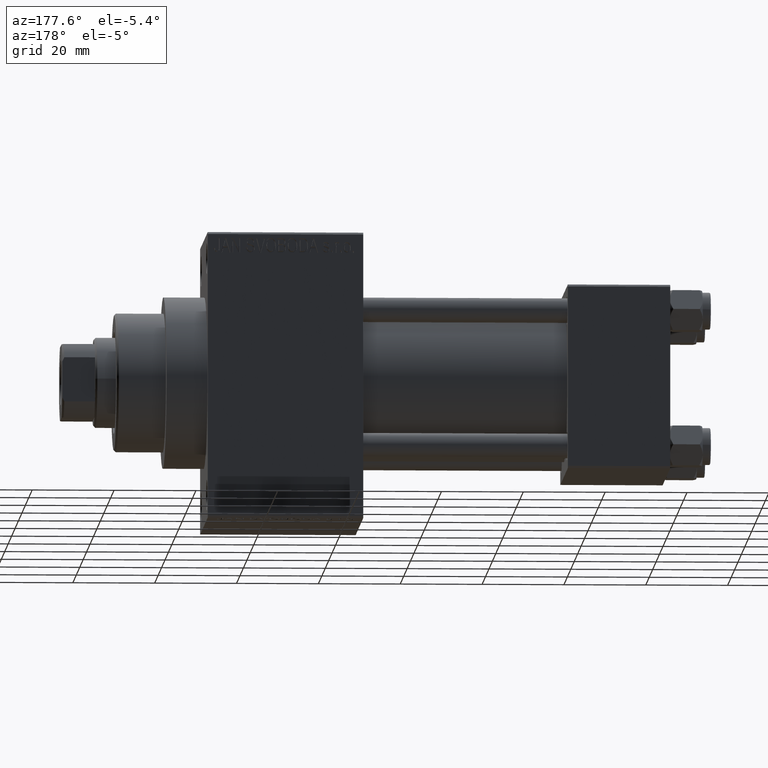
[diagram: clean part render]
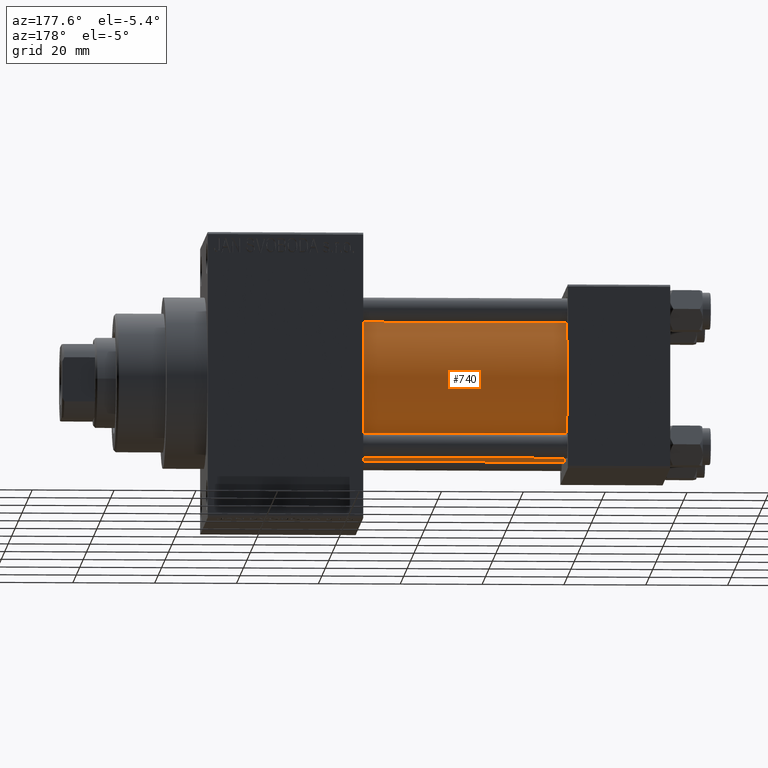
[diagram: same view with one face highlighted and labeled with its STEP entity id]
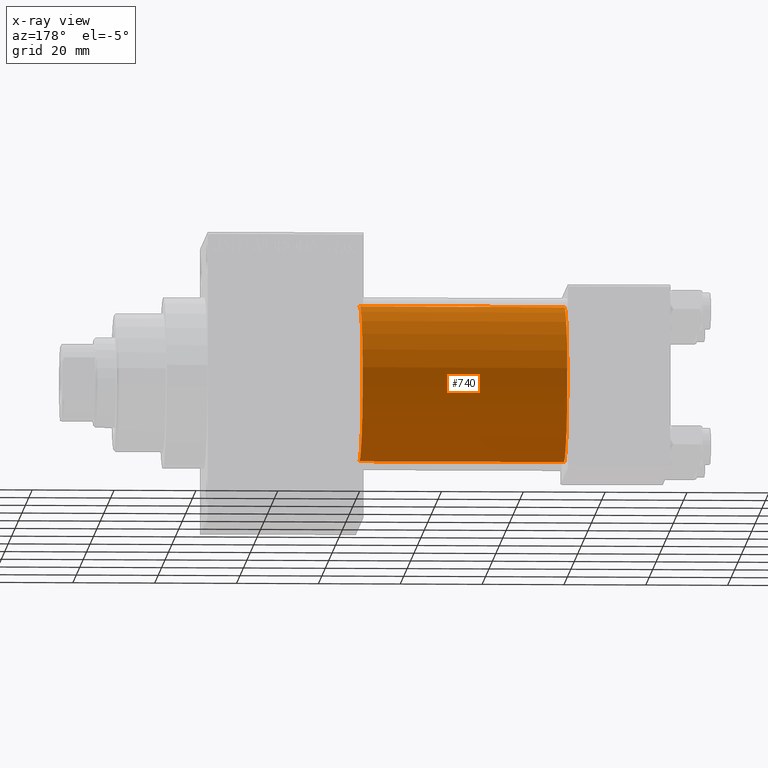
[diagram: x-ray of the same camera — body ghosted, the highlighted face saturated]
A machine part, auxiliary view. The second image highlights one B-rep face of the part: STEP entity #740.
The next image is the same camera in x-ray: the body ghosted, the highlighted face saturated — about 0% of this face is hidden behind the body in this view.
In plain terms, the highlighted cylindrical surface (partial cylindrical patch) has radius 19 mm, axis along (-1, -0, -0).
Its self-contained STEP definition (entity closure, byte-faithful):
#363 = CIRCLE ( 'NONE', #39194, 19.00000000000000000 ) ;
#740 = ADVANCED_FACE ( 'NONE', ( #43077 ), #10881, .T. ) ;
#3723 = EDGE_CURVE ( 'NONE', #46496, #33943, #3788, .T. ) ;
#3788 = LINE ( 'NONE', #46921, #24869 ) ;
#8344 = VECTOR ( 'NONE', #39239, 1000.000000000000000 ) ;
#9217 = ORIENTED_EDGE ( 'NONE', *, *, #39480, .F. ) ;
#10654 = CARTESIAN_POINT ( 'NONE',  ( 75.00000000000001421, -2.602085213965210642E-15, 0.000000000000000000 ) ) ;
#10881 = CYLINDRICAL_SURFACE ( 'NONE', #24996, 19.00000000000000000 ) ;
#10885 = EDGE_CURVE ( 'NONE', #23610, #26611, #36116, .T. ) ;
#11115 = ORIENTED_EDGE ( 'NONE', *, *, #10885, .F. ) ;
#11292 = CARTESIAN_POINT ( 'NONE',  ( 75.00000000000001421, -2.752562955852396712E-16, -19.00000000000000000 ) ) ;
#11596 = CARTESIAN_POINT ( 'NONE',  ( 25.00000000000000000, -2.602085213965210642E-15, 19.00000000000000000 ) ) ;
#13042 = DIRECTION ( 'NONE',  ( 0.000000000000000000, 0.000000000000000000, -1.000000000000000000 ) ) ;
#15209 = CARTESIAN_POINT ( 'NONE',  ( 25.00000000000000000, -2.752562955852396712E-16, -19.00000000000000000 ) ) ;
#16388 = DIRECTION ( 'NONE',  ( 1.000000000000000000, 0.000000000000000000, 0.000000000000000000 ) ) ;
#18541 = DIRECTION ( 'NONE',  ( 0.000000000000000000, 0.000000000000000000, 1.000000000000000000 ) ) ;
#19036 = EDGE_LOOP ( 'NONE', ( #9217, #33796, #24474, #11115 ) ) ;
#23610 = VERTEX_POINT ( 'NONE', #42145 ) ;
#24474 = ORIENTED_EDGE ( 'NONE', *, *, #30135, .T. ) ;
#24869 = VECTOR ( 'NONE', #40745, 1000.000000000000000 ) ;
#24996 = AXIS2_PLACEMENT_3D ( 'NONE', #10654, #31890, #46184 ) ;
#26611 = VERTEX_POINT ( 'NONE', #11596 ) ;
#28530 = CARTESIAN_POINT ( 'NONE',  ( 75.00000000000001421, -2.602085213965210642E-15, 19.00000000000000000 ) ) ;
#30135 = EDGE_CURVE ( 'NONE', #33943, #26611, #363, .T. ) ;
#31890 = DIRECTION ( 'NONE',  ( -1.000000000000000000, -0.000000000000000000, -0.000000000000000000 ) ) ;
#33554 = DIRECTION ( 'NONE',  ( 1.000000000000000000, -0.000000000000000000, 0.000000000000000000 ) ) ;
#33796 = ORIENTED_EDGE ( 'NONE', *, *, #3723, .T. ) ;
#33943 = VERTEX_POINT ( 'NONE', #15209 ) ;
#34022 = AXIS2_PLACEMENT_3D ( 'NONE', #34734, #16388, #13042 ) ;
#34734 = CARTESIAN_POINT ( 'NONE',  ( 75.00000000000001421, -2.602085213965210642E-15, 0.000000000000000000 ) ) ;
#36116 = LINE ( 'NONE', #28530, #8344 ) ;
#39194 = AXIS2_PLACEMENT_3D ( 'NONE', #44749, #33554, #18541 ) ;
#39239 = DIRECTION ( 'NONE',  ( -1.000000000000000000, -0.000000000000000000, -0.000000000000000000 ) ) ;
#39480 = EDGE_CURVE ( 'NONE', #46496, #23610, #46196, .T. ) ;
#40745 = DIRECTION ( 'NONE',  ( -1.000000000000000000, -0.000000000000000000, -0.000000000000000000 ) ) ;
#42145 = CARTESIAN_POINT ( 'NONE',  ( 75.00000000000001421, -2.602085213965210642E-15, 19.00000000000000000 ) ) ;
#43077 = FACE_OUTER_BOUND ( 'NONE', #19036, .T. ) ;
#44749 = CARTESIAN_POINT ( 'NONE',  ( 25.00000000000000000, -2.602085213965210642E-15, 0.000000000000000000 ) ) ;
#46184 = DIRECTION ( 'NONE',  ( 0.000000000000000000, 0.000000000000000000, 1.000000000000000000 ) ) ;
#46196 = CIRCLE ( 'NONE', #34022, 19.00000000000000000 ) ;
#46496 = VERTEX_POINT ( 'NONE', #11292 ) ;
#46921 = CARTESIAN_POINT ( 'NONE',  ( 75.00000000000001421, -2.752562955852396712E-16, -19.00000000000000000 ) ) ;